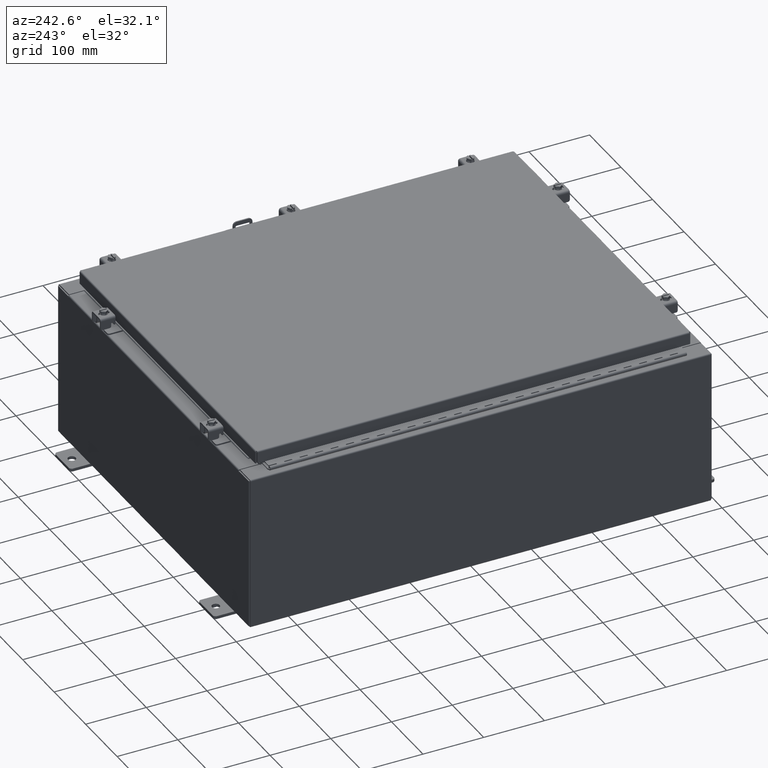
[diagram: clean part render]
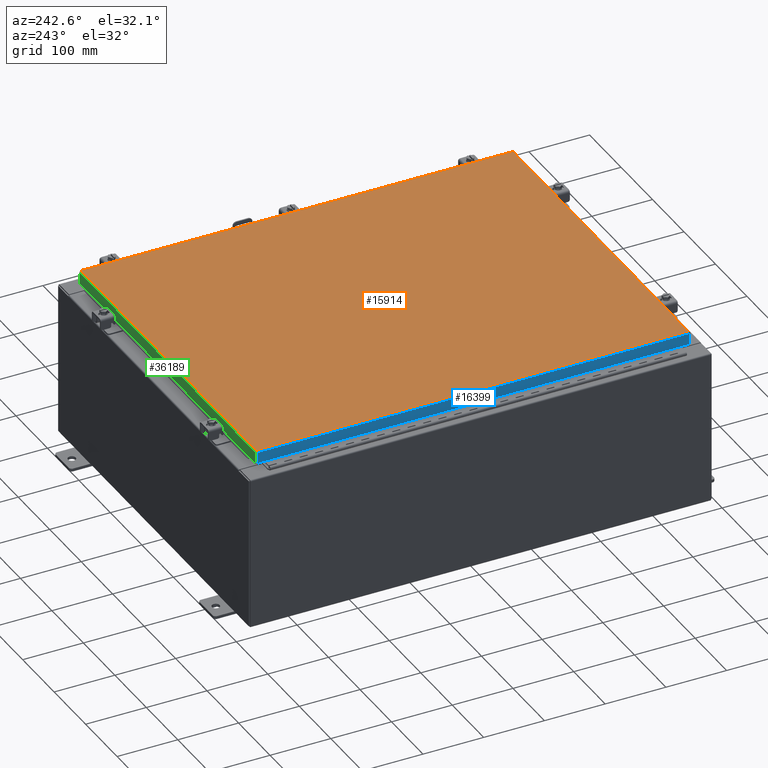
[diagram: same view with three faces highlighted in distinct colors, each labeled with its STEP entity id]
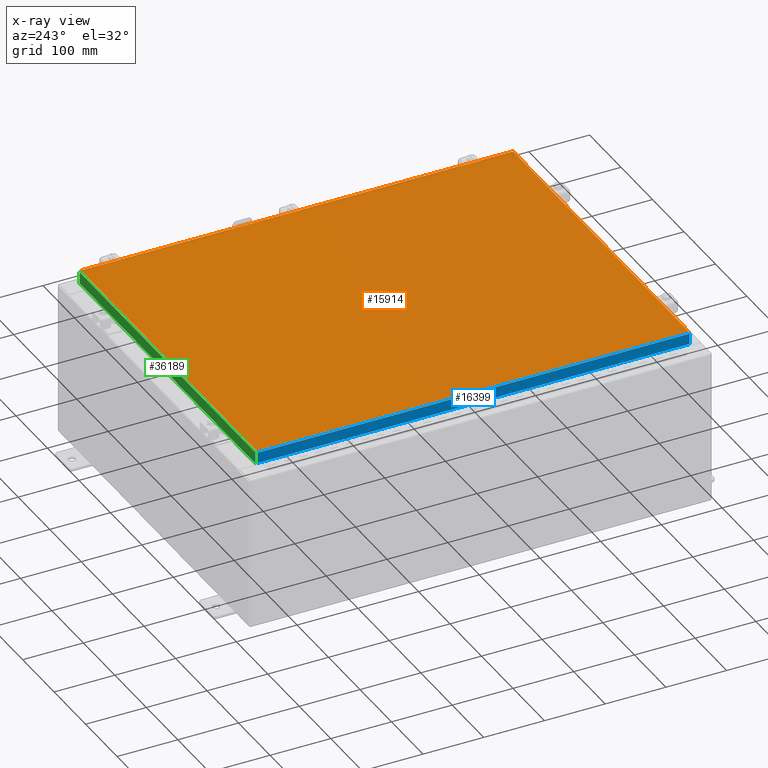
[diagram: x-ray of the same camera — body ghosted, the three highlighted faces saturated]
A machine part, auxiliary view with three faces highlighted in distinct colors.
The next image is the same camera in x-ray (body ghosted, the three faces saturated) — at least one of them is partly hidden behind the body in this view.
Their STEP definitions:

[orange] entity #15914 — the highlighted planar face has unit normal (0, 0, -1).
#230 = CARTESIAN_POINT ( 'NONE',  ( -10.99029999999999600, -14.00629999999999800, -2.219626494852214000E-016 ) ) ;
#388 = EDGE_CURVE ( 'NONE', #2206, #9236, #9117, .T. ) ;
#492 = DIRECTION ( 'NONE',  ( 1.000000000000000000, -0.0000000000000000000, -0.0000000000000000000 ) ) ;
#896 = EDGE_CURVE ( 'NONE', #20999, #2206, #31202, .T. ) ;
#2206 = VERTEX_POINT ( 'NONE', #3633 ) ;
#2346 = EDGE_CURVE ( 'NONE', #23506, #20999, #33929, .T. ) ;
#3633 = CARTESIAN_POINT ( 'NONE',  ( 10.99030000000000000, 14.00629999999999800, -2.048885995248197400E-016 ) ) ;
#4093 = AXIS2_PLACEMENT_3D ( 'NONE', #5419, #5337, #5284 ) ;
#5284 = DIRECTION ( 'NONE',  ( -1.000000000000000000, 0.0000000000000000000, -0.0000000000000000000 ) ) ;
#5337 = DIRECTION ( 'NONE',  ( 0.0000000000000000000, 0.0000000000000000000, -1.000000000000000000 ) ) ;
#5419 = CARTESIAN_POINT ( 'NONE',  ( 0.0000000000000000000, 0.0000000000000000000, 0.0000000000000000000 ) ) ;
#5666 = FACE_OUTER_BOUND ( 'NONE', #32496, .T. ) ;
#6182 = PLANE ( 'NONE',  #4093 ) ;
#6597 = DIRECTION ( 'NONE',  ( 0.0000000000000000000, -1.000000000000000000, 0.0000000000000000000 ) ) ;
#7889 = ORIENTED_EDGE ( 'NONE', *, *, #2346, .T. ) ;
#8562 = ORIENTED_EDGE ( 'NONE', *, *, #896, .T. ) ;
#9117 = LINE ( 'NONE', #10858, #23623 ) ;
#9236 = VERTEX_POINT ( 'NONE', #23299 ) ;
#10858 = CARTESIAN_POINT ( 'NONE',  ( 10.99030000000000000, 14.00629999999999800, -2.048885995248197400E-016 ) ) ;
#10948 = DIRECTION ( 'NONE',  ( -1.000000000000000000, -0.0000000000000000000, -0.0000000000000000000 ) ) ;
#11117 = ORIENTED_EDGE ( 'NONE', *, *, #388, .T. ) ;
#13071 = ORIENTED_EDGE ( 'NONE', *, *, #36781, .T. ) ;
#13223 = LINE ( 'NONE', #18188, #27704 ) ;
#14912 = CARTESIAN_POINT ( 'NONE',  ( 10.99030000000000000, -14.00629999999999800, -2.048885995248197400E-016 ) ) ;
#15859 = VECTOR ( 'NONE', #31419, 39.37007874015748100 ) ;
#15914 = ADVANCED_FACE ( 'NONE', ( #5666 ), #6182, .F. ) ;
#18188 = CARTESIAN_POINT ( 'NONE',  ( -10.99030000000000000, 14.00630000000000100, -2.048885995248197400E-016 ) ) ;
#20999 = VERTEX_POINT ( 'NONE', #14912 ) ;
#23299 = CARTESIAN_POINT ( 'NONE',  ( -10.99030000000000000, 14.00630000000000100, -2.048885995248197400E-016 ) ) ;
#23506 = VERTEX_POINT ( 'NONE', #26353 ) ;
#23623 = VECTOR ( 'NONE', #10948, 39.37007874015748100 ) ;
#26353 = CARTESIAN_POINT ( 'NONE',  ( -10.99029999999999800, -14.00629999999999800, -2.048885995248197400E-016 ) ) ;
#27704 = VECTOR ( 'NONE', #6597, 39.37007874015748100 ) ;
#31024 = CARTESIAN_POINT ( 'NONE',  ( 10.99030000000000000, -14.00629999999999800, -2.048885995248197400E-016 ) ) ;
#31202 = LINE ( 'NONE', #31024, #15859 ) ;
#31419 = DIRECTION ( 'NONE',  ( 0.0000000000000000000, 1.000000000000000000, 0.0000000000000000000 ) ) ;
#32130 = VECTOR ( 'NONE', #492, 39.37007874015748100 ) ;
#32496 = EDGE_LOOP ( 'NONE', ( #7889, #8562, #11117, #13071 ) ) ;
#33929 = LINE ( 'NONE', #230, #32130 ) ;
#36781 = EDGE_CURVE ( 'NONE', #9236, #23506, #13223, .T. ) ;

[blue] entity #16399 — the highlighted planar face has unit normal (1, 0, -0).
#108 = PLANE ( 'NONE',  #2629 ) ;
#2172 = ORIENTED_EDGE ( 'NONE', *, *, #6140, .T. ) ;
#2629 = AXIS2_PLACEMENT_3D ( 'NONE', #19418, #7190, #16851 ) ;
#2802 = VECTOR ( 'NONE', #37086, 39.37007874015748100 ) ;
#2946 = EDGE_CURVE ( 'NONE', #7664, #16421, #13122, .T. ) ;
#3781 = LINE ( 'NONE', #22692, #18361 ) ;
#3827 = EDGE_LOOP ( 'NONE', ( #29731, #2172, #7200, #10004 ) ) ;
#6140 = EDGE_CURVE ( 'NONE', #7664, #13924, #3781, .T. ) ;
#6552 = FACE_OUTER_BOUND ( 'NONE', #3827, .T. ) ;
#6663 = CARTESIAN_POINT ( 'NONE',  ( -11.07800000000000300, -14.09399999999999600, -0.7949999999999997100 ) ) ;
#7190 = DIRECTION ( 'NONE',  ( 1.000000000000000000, 3.675660434206576600E-031, -3.034122441942816500E-015 ) ) ;
#7200 = ORIENTED_EDGE ( 'NONE', *, *, #23659, .F. ) ;
#7664 = VERTEX_POINT ( 'NONE', #31966 ) ;
#10004 = ORIENTED_EDGE ( 'NONE', *, *, #35908, .F. ) ;
#13122 = LINE ( 'NONE', #21135, #27597 ) ;
#13924 = VERTEX_POINT ( 'NONE', #20670 ) ;
#15575 = VECTOR ( 'NONE', #29719, 39.37007874015748100 ) ;
#16399 = ADVANCED_FACE ( 'NONE', ( #6552 ), #108, .F. ) ;
#16421 = VERTEX_POINT ( 'NONE', #33255 ) ;
#16851 = DIRECTION ( 'NONE',  ( -3.034122441942816500E-015, 0.0000000000000000000, -1.000000000000000000 ) ) ;
#18361 = VECTOR ( 'NONE', #22554, 39.37007874015748100 ) ;
#19418 = CARTESIAN_POINT ( 'NONE',  ( -11.07799999999999900, -4.071896629014046000E-030, 3.387282206785410600E-014 ) ) ;
#19747 = CARTESIAN_POINT ( 'NONE',  ( -11.07800000000000300, -14.00515786437626200, -0.7949999999999996000 ) ) ;
#20670 = CARTESIAN_POINT ( 'NONE',  ( -11.07800000000000300, 14.00515786437627400, -0.7949999999999962700 ) ) ;
#21135 = CARTESIAN_POINT ( 'NONE',  ( -11.07799999999999900, -14.09399999999999600, -0.08770000000000004200 ) ) ;
#22554 = DIRECTION ( 'NONE',  ( -3.034122441942816500E-015, 6.982962677686265900E-015, -1.000000000000000000 ) ) ;
#22692 = CARTESIAN_POINT ( 'NONE',  ( -11.07799999999999900, 14.00515786437626900, 1.316703167298978800E-013 ) ) ;
#23659 = EDGE_CURVE ( 'NONE', #24000, #13924, #30913, .T. ) ;
#24000 = VERTEX_POINT ( 'NONE', #19747 ) ;
#25075 = LINE ( 'NONE', #34210, #2802 ) ;
#27597 = VECTOR ( 'NONE', #30004, 39.37007874015748100 ) ;
#29719 = DIRECTION ( 'NONE',  ( -4.379057701015054300E-047, 1.000000000000000000, 1.211441035930299800E-016 ) ) ;
#29731 = ORIENTED_EDGE ( 'NONE', *, *, #2946, .F. ) ;
#30004 = DIRECTION ( 'NONE',  ( 3.675660434206577100E-031, -1.000000000000000000, -1.083515668565077200E-045 ) ) ;
#30913 = LINE ( 'NONE', #6663, #15575 ) ;
#31966 = CARTESIAN_POINT ( 'NONE',  ( -11.07799999999999900, 14.00515786437626900, -0.08770000000000004200 ) ) ;
#33255 = CARTESIAN_POINT ( 'NONE',  ( -11.07799999999999900, -14.00515786437626400, -0.08770000000000007000 ) ) ;
#34210 = CARTESIAN_POINT ( 'NONE',  ( -11.07799999999999900, -14.00515786437626500, -0.07469999999999976700 ) ) ;
#35908 = EDGE_CURVE ( 'NONE', #16421, #24000, #25075, .T. ) ;
#37086 = DIRECTION ( 'NONE',  ( -3.034122441942816500E-015, 6.982962677686265900E-015, -1.000000000000000000 ) ) ;

[green] entity #36189 — the highlighted planar face has unit normal (0, -1, -0).
#211 = ORIENTED_EDGE ( 'NONE', *, *, #18774, .F. ) ;
#2386 = CARTESIAN_POINT ( 'NONE',  ( 10.98915786437626700, 14.09400000000000100, -0.8499999999999996400 ) ) ;
#2501 = ORIENTED_EDGE ( 'NONE', *, *, #14178, .T. ) ;
#2898 = LINE ( 'NONE', #23914, #32789 ) ;
#3629 = CARTESIAN_POINT ( 'NONE',  ( 10.98915786437626700, 14.09399999999999900, -0.08770000000000007000 ) ) ;
#4952 = VERTEX_POINT ( 'NONE', #35663 ) ;
#6938 = CARTESIAN_POINT ( 'NONE',  ( -10.23915786437627100, 14.09399999999999900, -0.8500000000000033100 ) ) ;
#7040 = CARTESIAN_POINT ( 'NONE',  ( -11.07799999999999900, 14.09400000000000100, -0.8500000000000024200 ) ) ;
#7581 = DIRECTION ( 'NONE',  ( 1.000000000000000000, -4.379057701015054300E-047, 1.233005954894504400E-016 ) ) ;
#7966 = ORIENTED_EDGE ( 'NONE', *, *, #13225, .F. ) ;
#9143 = VECTOR ( 'NONE', #34882, 39.37007874015748100 ) ;
#9887 = CARTESIAN_POINT ( 'NONE',  ( -10.98915786437626700, 14.09399999999999900, -0.08770000000000007000 ) ) ;
#10259 = ORIENTED_EDGE ( 'NONE', *, *, #11273, .F. ) ;
#11273 = EDGE_CURVE ( 'NONE', #35648, #4952, #23057, .T. ) ;
#12650 = PLANE ( 'NONE',  #17220 ) ;
#13225 = EDGE_CURVE ( 'NONE', #4952, #13750, #2898, .T. ) ;
#13750 = VERTEX_POINT ( 'NONE', #2386 ) ;
#13936 = ORIENTED_EDGE ( 'NONE', *, *, #14580, .F. ) ;
#14178 = EDGE_CURVE ( 'NONE', #20346, #13750, #28867, .T. ) ;
#14580 = EDGE_CURVE ( 'NONE', #32869, #35648, #25699, .T. ) ;
#15534 = CARTESIAN_POINT ( 'NONE',  ( -4.898647335700341400E-030, 14.09399999999999900, 3.999012166344507700E-014 ) ) ;
#16140 = VECTOR ( 'NONE', #16463, 39.37007874015748100 ) ;
#16463 = DIRECTION ( 'NONE',  ( -1.000000000000000000, -3.475696988576942200E-031, -9.473942235605600700E-046 ) ) ;
#17070 = LINE ( 'NONE', #36605, #16140 ) ;
#17220 = AXIS2_PLACEMENT_3D ( 'NONE', #15534, #35699, #18481 ) ;
#18481 = DIRECTION ( 'NONE',  ( 0.0000000000000000000, 2.818880942772350300E-015, -1.000000000000000000 ) ) ;
#18774 = EDGE_CURVE ( 'NONE', #21797, #32869, #24573, .T. ) ;
#20110 = DIRECTION ( 'NONE',  ( 1.000000000000000000, -0.0000000000000000000, -0.0000000000000000000 ) ) ;
#20346 = VERTEX_POINT ( 'NONE', #3629 ) ;
#20354 = CARTESIAN_POINT ( 'NONE',  ( -10.23915786437627100, 14.09399999999999900, -0.8500000000000033100 ) ) ;
#21797 = VERTEX_POINT ( 'NONE', #9887 ) ;
#21943 = EDGE_CURVE ( 'NONE', #20346, #21797, #17070, .T. ) ;
#23057 = LINE ( 'NONE', #20354, #36519 ) ;
#23268 = DIRECTION ( 'NONE',  ( 1.000000000000000000, -4.379057701015054300E-047, 1.233005954894504400E-016 ) ) ;
#23914 = CARTESIAN_POINT ( 'NONE',  ( -11.07799999999999900, 14.09400000000000100, -0.8500000000000024200 ) ) ;
#24573 = LINE ( 'NONE', #34956, #9143 ) ;
#25699 = LINE ( 'NONE', #7040, #32420 ) ;
#27101 = CARTESIAN_POINT ( 'NONE',  ( 10.98915786437626900, 14.09399999999999900, 3.999012166344507700E-014 ) ) ;
#27774 = DIRECTION ( 'NONE',  ( 0.0000000000000000000, 2.818880942772350300E-015, -1.000000000000000000 ) ) ;
#28867 = LINE ( 'NONE', #27101, #29758 ) ;
#29547 = FACE_OUTER_BOUND ( 'NONE', #30483, .T. ) ;
#29758 = VECTOR ( 'NONE', #27774, 39.37007874015748100 ) ;
#30483 = EDGE_LOOP ( 'NONE', ( #36926, #2501, #7966, #10259, #13936, #211 ) ) ;
#32420 = VECTOR ( 'NONE', #7581, 39.37007874015748100 ) ;
#32789 = VECTOR ( 'NONE', #23268, 39.37007874015748100 ) ;
#32869 = VERTEX_POINT ( 'NONE', #33061 ) ;
#33061 = CARTESIAN_POINT ( 'NONE',  ( -10.98915786437626900, 14.09400000000000100, -0.8500000000000024200 ) ) ;
#34882 = DIRECTION ( 'NONE',  ( -0.0000000000000000000, 2.818880942772350300E-015, -1.000000000000000000 ) ) ;
#34956 = CARTESIAN_POINT ( 'NONE',  ( -10.98915786437626900, 14.09399999999999900, -0.07469999999999978000 ) ) ;
#35648 = VERTEX_POINT ( 'NONE', #6938 ) ;
#35663 = CARTESIAN_POINT ( 'NONE',  ( 10.23915786437626700, 14.09399999999999900, -0.8500000000000033100 ) ) ;
#35699 = DIRECTION ( 'NONE',  ( 3.475696988576941300E-031, -1.000000000000000000, -2.818880942772350300E-015 ) ) ;
#36189 = ADVANCED_FACE ( 'NONE', ( #29547 ), #12650, .F. ) ;
#36519 = VECTOR ( 'NONE', #20110, 39.37007874015748100 ) ;
#36605 = CARTESIAN_POINT ( 'NONE',  ( -11.07799999999999900, 14.09399999999999900, -0.08770000000000007000 ) ) ;
#36926 = ORIENTED_EDGE ( 'NONE', *, *, #21943, .F. ) ;